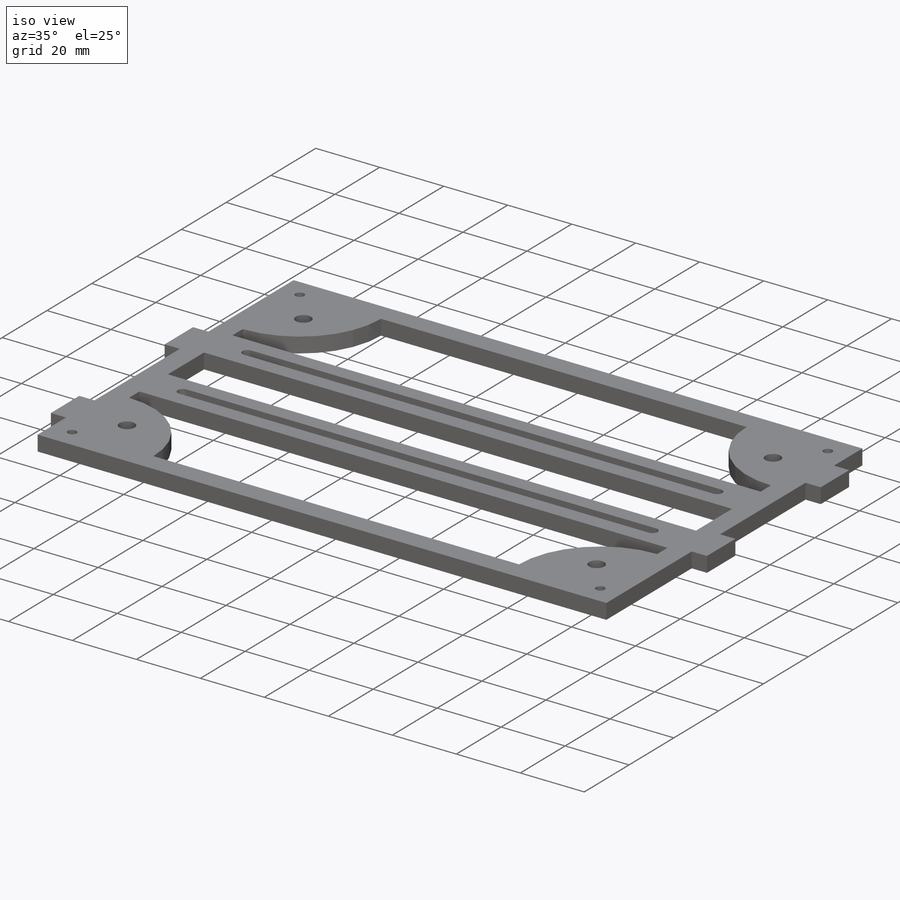
[diagram: iso view]
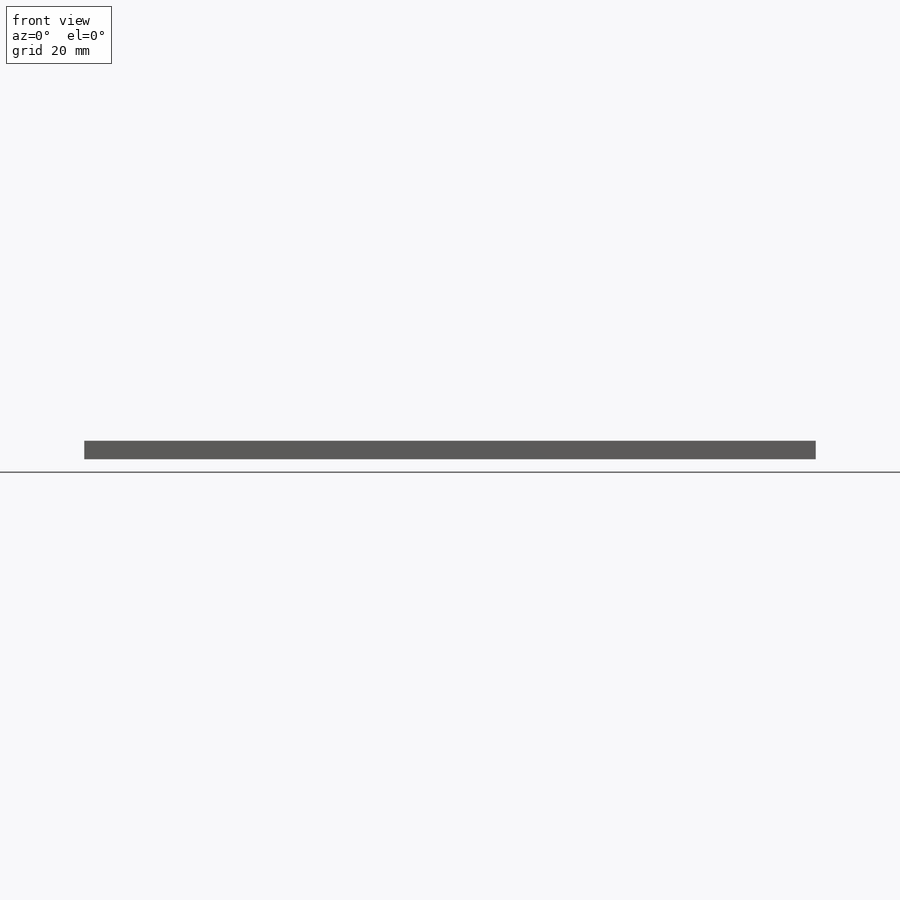
[diagram: front view]
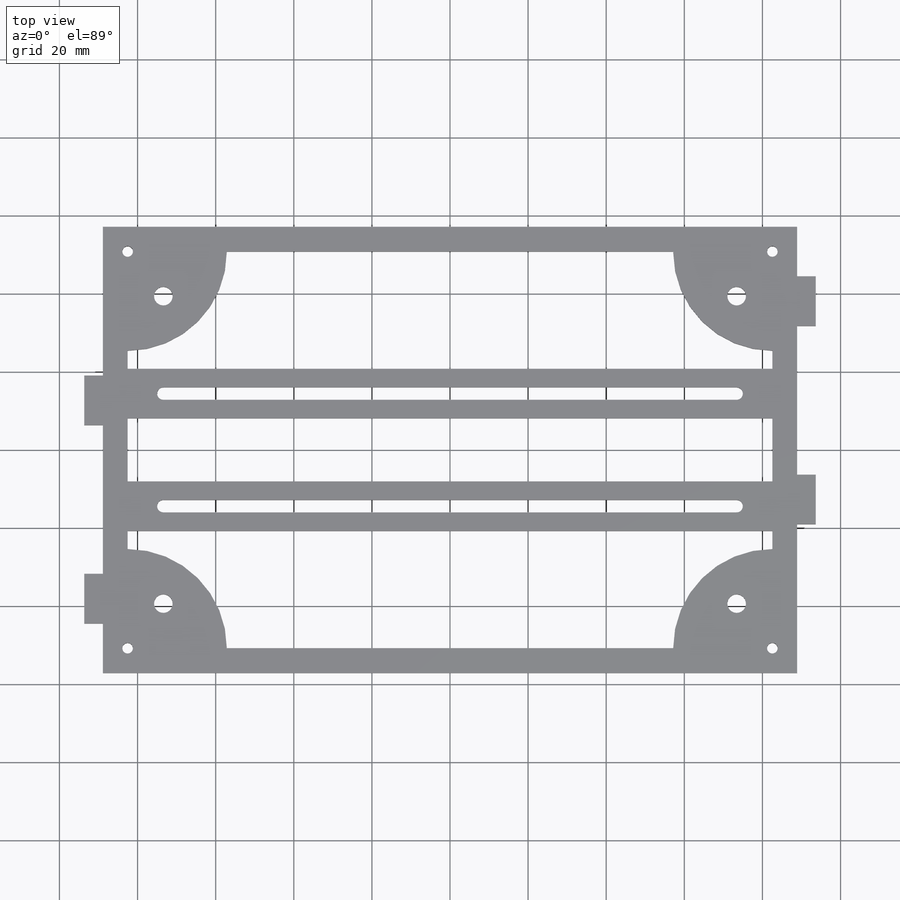
[diagram: top view]
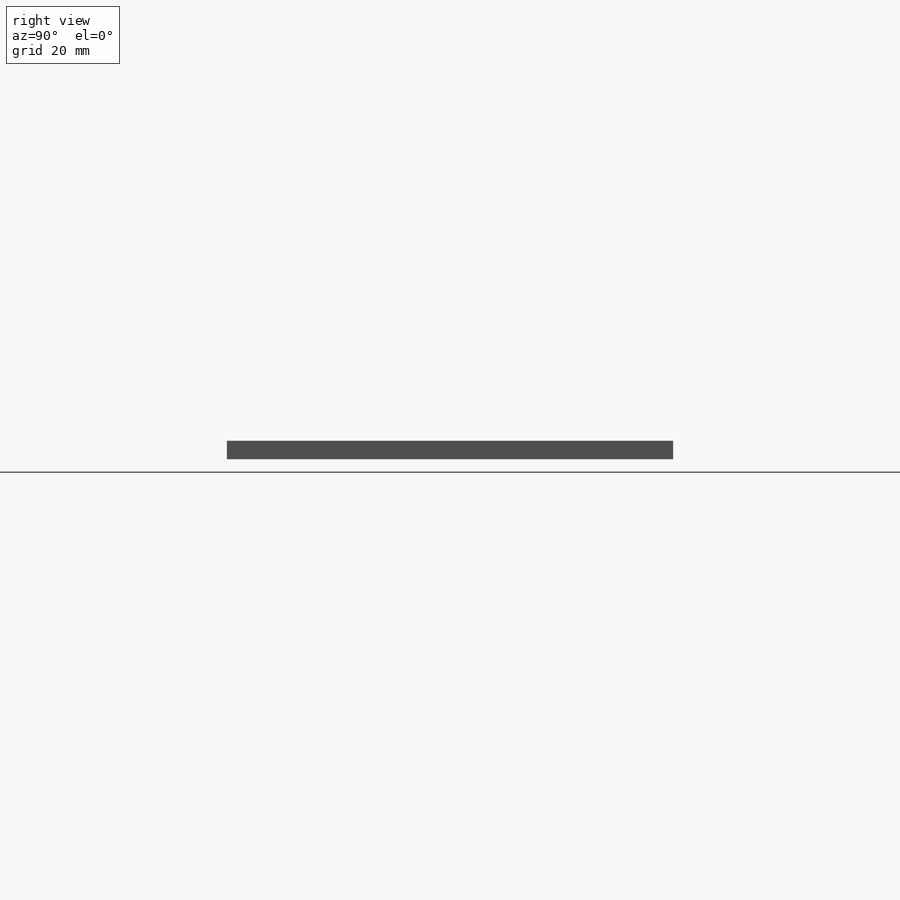
[diagram: right view]
SOLIDWORKS PART (.sldprt)
format: sldprt  version: not decoded by parser v0  size: 361,984 bytes
history: native  units: mm
features: sketch x7, thread x4, extrude x3, cut_extrude x2, material x1, hole x1 (+11 scaffold rows collapsed)
feature tree (29):
  scaffold x11  (default folders/planes/origin — collapsed)
  material  "6061-T6 (SS)"
  sketch  "Sketch1"  dims[c1.D6=27.94mm c1.D4=25.4mm c1.D1=114.3mm c1.D2=177.8mm c2.D4=30.48mm c2.D5=12.7mm c2.D6=6.35mm c2.D7=6.35mm c2.D3=6.35mm]
  extrude  "Boss-Extrude1"  Depth=4.7625mm
  sketch  "Sketch3"  dims[D1=1.5875mm D2=6.35mm D3=146.812mm]
  cut_extrude  "Cut-Extrude1"  [1 undecoded]
  sketch  "Sketch4"  dims[D1=4.7625mm D2=17.78mm D3=12.7mm]
  cut_extrude  "Cut-Extrude2"  [1 undecoded]
  hole  "#6-32 Tapped Hole1"  Diameter=2.7051mm Depth=6.2865mm
  sketch  "Sketch5"  dims[D1=6.35mm D2=6.35mm]
  sketch  "Sketch6"  dims[Thru Tap Drill Dia.=2.7051mm Thru Tap Drill Depth=6.2865mm]
  thread  "Hole Thread1"  Diameter=6.2865mm  [1 undecoded]
  thread  "Hole Thread2"  Diameter=6.2865mm  [1 undecoded]
  thread  "Hole Thread3"  Diameter=6.2865mm  [1 undecoded]
  thread  "Hole Thread4"  Diameter=6.2865mm  [1 undecoded]
  sketch  "Sketch7"  dims[c1.D1=12.7mm c1.D2=19.05mm c1.D3=4.7625mm c2.D2=12.7mm c2.D4=4.7625mm c2.D5=19.05mm c2.D6=50.8mm]
  extrude  "Boss-Extrude2"  Depth=4.7625mm
  sketch  "Sketch8"  dims[D1=12.7mm D2=4.7625mm D3=19.05mm D4=12.7mm D5=4.7625mm D6=50.8mm]
  extrude  "Boss-Extrude3"  Depth=4.7625mm
decode coverage: 15 of 17 modeling features carry decoded parameters
note: 6 parameter values undecoded
note: suppression state not decoded; provenance and decode notes live in map.json
